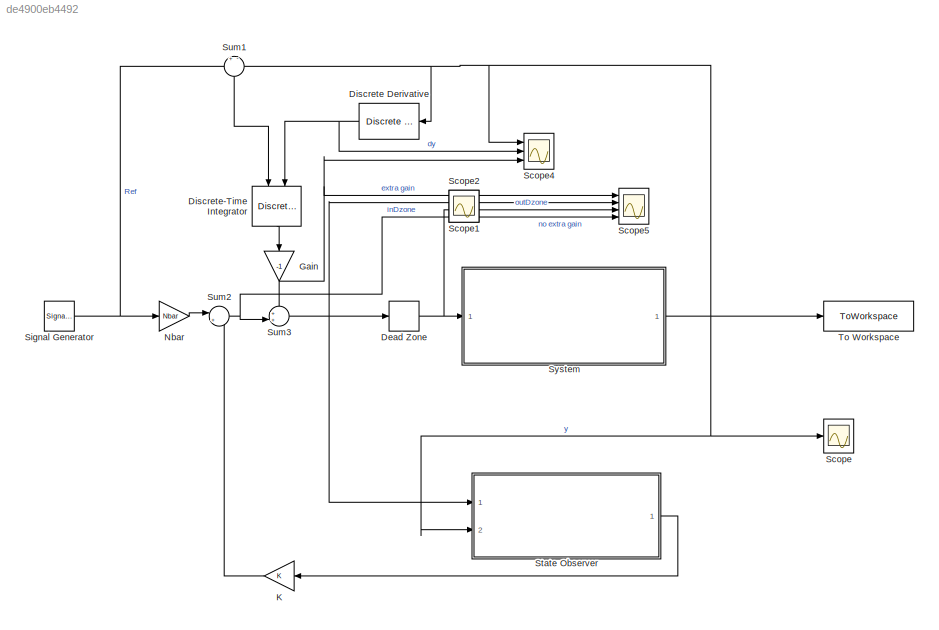
MODEL slx_de4900eb4492
KIND model
CONFIG AbsTol = auto
CONFIG EnableMultiTasking = off
CONFIG FixedStep = auto
CONFIG MaxStep = auto
CONFIG MinStep = auto
CONFIG RelTol = 1e-3
CONFIG SampleTimeConstraint = Unconstrained
CONFIG Solver = VariableStepAuto
CONFIG SolverName = VariableStepAuto
CONFIG StartTime = 0.0
CONFIG StopTime = 500
BLOCK [DeadZone] Dead Zone
  LowerValue = -0.1
  UpperValue = 0.1
BLOCK [Reference] Discrete Derivative  REF=simulink/Discrete/Discrete Derivative
  NameLocation = top
  Ports = [1, 1]
  SourceBlock = simulink/Discrete/Discrete Derivative
  SourceProductBaseCode = SL
  SourceType = Discrete Derivative
BLOCK [DiscreteIntegrator] Discrete-Time Integrator
  ExternalReset = either
  ICPrevOutput = DiscIntNeverNeededParam
  ICPrevScaledInput = DiscIntNeverNeededParam
  InitialConditionSetting = Auto
  NameLocation = left
  Ports = [2, 1]
  SampleTime = Ts
  gainval = 0.008
BLOCK [Gain] Gain
  Gain = -1
  NameLocation = left
BLOCK [Gain] K
  Gain = K
  Multiplication = Matrix(K*u)
BLOCK [Gain] Nbar
  Gain = Nbar
  Multiplication = Matrix(K*u)
BLOCK [Scope] Scope
  Floating = off
  NumInputPorts = 1
  Ports = [1]
  ScopeSpecificationString = Simulink.scopes.TimeScopeBlockCfg('CurrentConfiguration', extmgr.ConfigurationSet(extmgr.Configuration('Core','General UI',true),extmgr.Configuration('Core','Source UI',true),extmgr.Configuration('Sources','WiredSimulink',true),extmgr.Configuration('Visuals','Time Domain',true,'SerializedDisplays',{struct('MinYLimReal','-6.76903','MaxYLimReal','6.76903','YLabelReal','','MinYLimMag','0.00000','MaxY...<+1393ch>
BLOCK [Scope] Scope1
  Floating = off
  IOType = viewer
  NumInputPorts = 1
  Ports = []
  ScopeSpecificationString = Simulink.scopes.TimeScopeBlockCfg('CurrentConfiguration', extmgr.ConfigurationSet(extmgr.Configuration('Core','General UI',true),extmgr.Configuration('Core','Source UI',true),extmgr.Configuration('Sources','WiredSimulink',true,'DataLoggingVariableName','ScopeData1'),extmgr.Configuration('Visuals','Time Domain',true,'SerializedDisplays',{struct('MinYLimReal','-1.44564','MaxYLimReal','1.44564','YLab...<+1436ch>
BLOCK [Scope] Scope2
  Floating = off
  IOType = viewer
  NumInputPorts = 1
  Ports = []
  ScopeSpecificationString = Simulink.scopes.TimeScopeBlockCfg('CurrentConfiguration', extmgr.ConfigurationSet(extmgr.Configuration('Core','General UI',true),extmgr.Configuration('Core','Source UI',true),extmgr.Configuration('Sources','WiredSimulink',true,'DataLoggingVariableName','ScopeData2'),extmgr.Configuration('Visuals','Time Domain',true,'SerializedDisplays',{struct('MinYLimReal','-1.82963','MaxYLimReal','1.86055','YLab...<+1368ch>
BLOCK [Scope] Scope4
  Floating = off
  NumInputPorts = 3
  Ports = [3]
  ScopeSpecificationString = Simulink.scopes.TimeScopeBlockCfg('CurrentConfiguration', extmgr.ConfigurationSet(extmgr.Configuration('Core','General UI',true),extmgr.Configuration('Core','Source UI',true),extmgr.Configuration('Sources','WiredSimulink',true,'DataLoggingVariableName','ScopeData4'),extmgr.Configuration('Visuals','Time Domain',true,'SerializedDisplays',{struct('MinYLimReal','-11.79297','MaxYLimReal','11.58656','YL...<+1807ch>
BLOCK [Scope] Scope5
  Floating = off
  NumInputPorts = 4
  Ports = [4]
  ScopeSpecificationString = Simulink.scopes.TimeScopeBlockCfg('CurrentConfiguration', extmgr.ConfigurationSet(extmgr.Configuration('Core','General UI',true),extmgr.Configuration('Core','Source UI',true),extmgr.Configuration('Sources','WiredSimulink',true,'DataLoggingVariableName','ScopeData1'),extmgr.Configuration('Visuals','Time Domain',true,'SerializedDisplays',{struct('MinYLimReal','-1.96386','MaxYLimReal','1.98658','YLab...<+1568ch>
BLOCK [SignalGenerator] Signal Generator
  Amplitude = 5
  Frequency = 1/50
  Ports = [0, 1]
  WaveForm = square
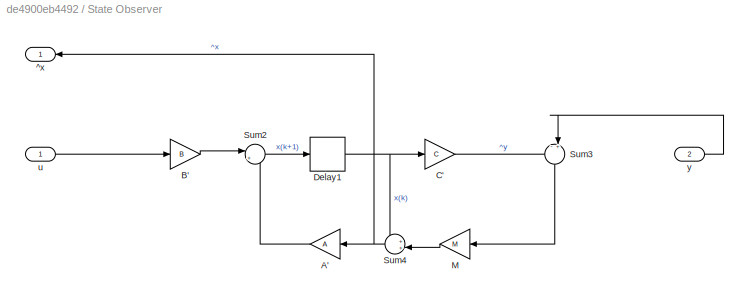
BLOCK [SubSystem] State Observer
  Ports = [2, 1]
  RequestExecContextInheritance = off
BLOCK [Gain] State Observer/A'
  Gain = A
  Multiplication = Matrix(K*u)
BLOCK [Gain] State Observer/B'
  Gain = B
  Multiplication = Matrix(K*u)
BLOCK [Gain] State Observer/C'
  Gain = C
  Multiplication = Matrix(K*u)
BLOCK [Delay] State Observer/Delay1
  DelayLength = 1
  InitialCondition = 0
  InputPortMap = u0
  Ports = [1, 1]
  SampleTime = Ts
BLOCK [Gain] State Observer/M
  Gain = M
  Multiplication = Matrix(K*u)
BLOCK [Sum] State Observer/Sum2
  Inputs = |++
  Ports = [2, 1]
BLOCK [Sum] State Observer/Sum3
  Inputs = -+|
  NameLocation = left
  Ports = [2, 1]
BLOCK [Sum] State Observer/Sum4
  Inputs = ++|
  Ports = [2, 1]
BLOCK [Outport] State Observer/^x
BLOCK [Inport] State Observer/u
BLOCK [Inport] State Observer/y
  Port = 2
BLOCK [Sum] Sum1
  Inputs = +-
  NameLocation = left
  Ports = [2, 1]
BLOCK [Sum] Sum2
  Inputs = |+-
  NameLocation = top
  Ports = [2, 1]
BLOCK [Sum] Sum3
  Inputs = ++|
  Ports = [2, 1]
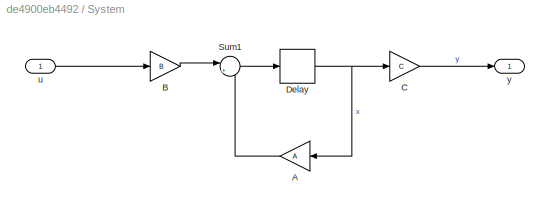
BLOCK [SubSystem] System
  Ports = [1, 1]
  RequestExecContextInheritance = off
BLOCK [Gain] System/A 
  Gain = A
  Multiplication = Matrix(K*u)
BLOCK [Gain] System/B
  Gain = B
  Multiplication = Matrix(K*u)
BLOCK [Gain] System/C
  Gain = C
  Multiplication = Matrix(K*u)
BLOCK [Delay] System/Delay
  DelayLength = 1
  InitialCondition = 0
  InputPortMap = u0
  Ports = [1, 1]
  SampleTime = Ts
BLOCK [Sum] System/Sum1
  Inputs = |++
  Ports = [2, 1]
BLOCK [Inport] System/u
BLOCK [Outport] System/y
BLOCK [ToWorkspace] To Workspace
  FixptAsFi = on
  MaxDataPoints = inf
  Ports = [1]
  SampleTime = Ts
  SaveFormat = Structure With Time
  VariableName = yout
NET Dead Zone:1 -> Scope5:3, System:1
NET Discrete Derivative:1 -> Discrete-Time Integrator:2, Scope4:2
LINE Discrete-Time Integrator:1 -> Gain:1
NET Gain:1 -> Scope4:3, Scope5:1, Sum3:1
LINE K:1 -> Sum2:2
LINE Nbar:1 -> Sum2:1
NET Signal Generator:1 -> Nbar:1, Sum1:1
LINE State Observer/A':1 -> State Observer/Sum2:2
LINE State Observer/B':1 -> State Observer/Sum2:1
LINE State Observer/C':1 -> State Observer/Sum3:1
NET State Observer/Delay1:1 -> State Observer/C':1, State Observer/Sum4:1
LINE State Observer/M:1 -> State Observer/Sum4:2
LINE State Observer/Sum2:1 -> State Observer/Delay1:1
LINE State Observer/Sum3:1 -> State Observer/M:1
NET State Observer/Sum4:1 -> State Observer/A':1, State Observer/^x:1
LINE State Observer/u:1 -> State Observer/B':1
LINE State Observer/y:1 -> State Observer/Sum3:2
LINE State Observer:1 -> K:1
LINE Sum1:1 -> Discrete-Time Integrator:1
NET Sum2:1 -> Scope5:4, Sum3:2
NET Sum3:1 -> Dead Zone:1, Scope5:2, State Observer:1
LINE System/A :1 -> System/Sum1:2
LINE System/B:1 -> System/Sum1:1
LINE System/C:1 -> System/y:1
NET System/Delay:1 -> System/A :1, System/C:1
LINE System/Sum1:1 -> System/Delay:1
LINE System/u:1 -> System/B:1
NET System:1 -> Discrete Derivative:1, Scope4:1, Scope:1, State Observer:2, Sum1:2, To Workspace:1
note: NET lines group one-source signal fan-out (src -> all destinations, sorted); 1:1 wires keep LINE
